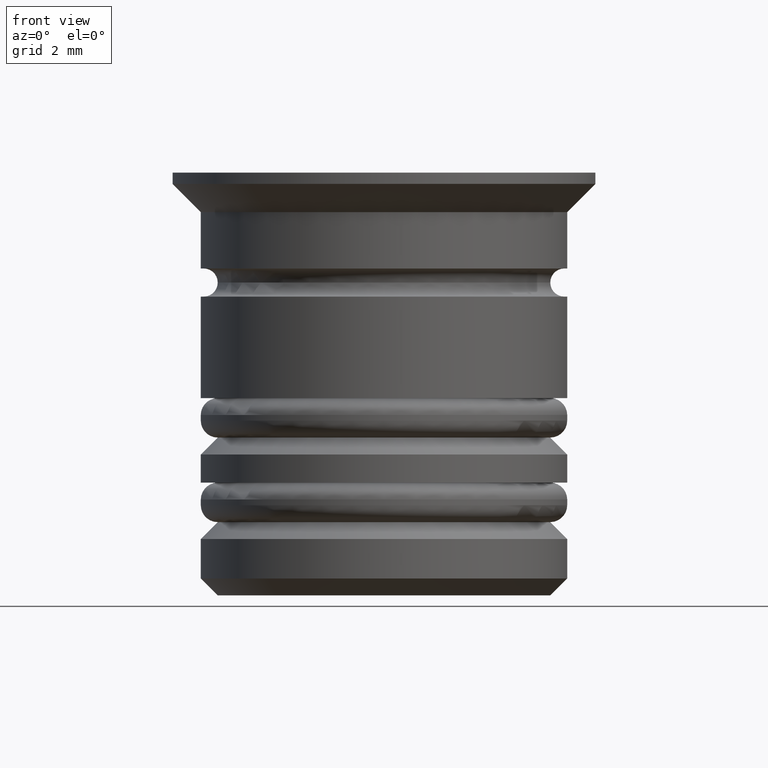
[diagram: clean part render]
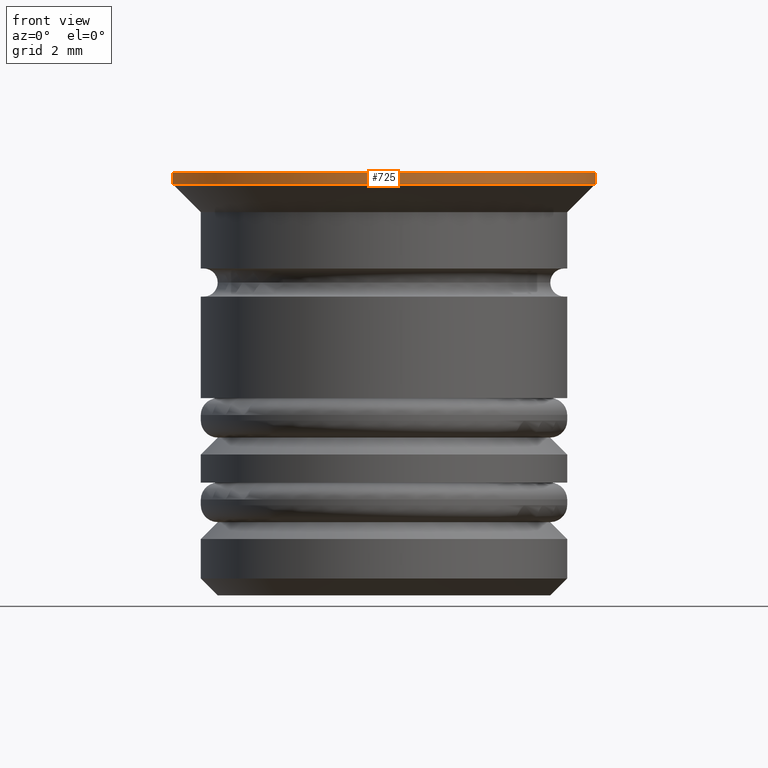
[diagram: same view with one face highlighted and labeled with its STEP entity id]
A machine part, front view. The second image highlights one B-rep face of the part: STEP entity #725.
In plain terms, the highlighted cylindrical surface (partial cylindrical patch) has radius 3.75 mm, axis along (-0, -0, 1).
Its self-contained STEP definition (entity closure, byte-faithful):
#9 = CARTESIAN_POINT ( 'NONE',  ( -3.750000000000000000, 4.592425496802573972E-16, 0.000000000000000000 ) ) ;
#60 = FACE_OUTER_BOUND ( 'NONE', #635, .T. ) ;
#170 = CARTESIAN_POINT ( 'NONE',  ( 0.000000000000000000, 0.000000000000000000, -0.1999999999999964029 ) ) ;
#180 = ORIENTED_EDGE ( 'NONE', *, *, #1560, .T. ) ;
#336 = VERTEX_POINT ( 'NONE', #817 ) ;
#383 = VECTOR ( 'NONE', #1230, 1000.000000000000000 ) ;
#408 = DIRECTION ( 'NONE',  ( -0.000000000000000000, -0.000000000000000000, 1.000000000000000000 ) ) ;
#450 = VERTEX_POINT ( 'NONE', #1272 ) ;
#554 = CARTESIAN_POINT ( 'NONE',  ( 0.000000000000000000, 0.000000000000000000, 0.000000000000000000 ) ) ;
#620 = VECTOR ( 'NONE', #843, 1000.000000000000000 ) ;
#635 = EDGE_LOOP ( 'NONE', ( #1005, #180, #1294, #1417 ) ) ;
#651 = VERTEX_POINT ( 'NONE', #1767 ) ;
#652 = CYLINDRICAL_SURFACE ( 'NONE', #1729, 3.750000000000000000 ) ;
#725 = ADVANCED_FACE ( 'NONE', ( #60 ), #652, .T. ) ;
#747 = DIRECTION ( 'NONE',  ( -1.000000000000000000, 0.000000000000000000, 0.000000000000000000 ) ) ;
#766 = CIRCLE ( 'NONE', #1642, 3.750000000000000000 ) ;
#791 = CIRCLE ( 'NONE', #1727, 3.750000000000000000 ) ;
#794 = EDGE_CURVE ( 'NONE', #1531, #450, #833, .T. ) ;
#817 = CARTESIAN_POINT ( 'NONE',  ( 3.750000000000000000, 0.000000000000000000, 0.000000000000000000 ) ) ;
#821 = DIRECTION ( 'NONE',  ( 1.000000000000000000, 0.000000000000000000, 0.000000000000000000 ) ) ;
#833 = LINE ( 'NONE', #9, #383 ) ;
#843 = DIRECTION ( 'NONE',  ( -0.000000000000000000, -0.000000000000000000, 1.000000000000000000 ) ) ;
#975 = CARTESIAN_POINT ( 'NONE',  ( 3.750000000000000000, 0.000000000000000000, 0.000000000000000000 ) ) ;
#982 = DIRECTION ( 'NONE',  ( -0.000000000000000000, -0.000000000000000000, 1.000000000000000000 ) ) ;
#1005 = ORIENTED_EDGE ( 'NONE', *, *, #794, .F. ) ;
#1230 = DIRECTION ( 'NONE',  ( -0.000000000000000000, -0.000000000000000000, 1.000000000000000000 ) ) ;
#1272 = CARTESIAN_POINT ( 'NONE',  ( -3.750000000000000000, 4.592425496802573972E-16, 0.000000000000000000 ) ) ;
#1294 = ORIENTED_EDGE ( 'NONE', *, *, #1712, .T. ) ;
#1346 = CARTESIAN_POINT ( 'NONE',  ( 0.000000000000000000, 0.000000000000000000, 0.000000000000000000 ) ) ;
#1417 = ORIENTED_EDGE ( 'NONE', *, *, #1659, .F. ) ;
#1510 = DIRECTION ( 'NONE',  ( -0.000000000000000000, -0.000000000000000000, 1.000000000000000000 ) ) ;
#1531 = VERTEX_POINT ( 'NONE', #1795 ) ;
#1560 = EDGE_CURVE ( 'NONE', #1531, #651, #766, .T. ) ;
#1642 = AXIS2_PLACEMENT_3D ( 'NONE', #170, #982, #747 ) ;
#1659 = EDGE_CURVE ( 'NONE', #450, #336, #791, .T. ) ;
#1674 = LINE ( 'NONE', #975, #620 ) ;
#1712 = EDGE_CURVE ( 'NONE', #651, #336, #1674, .T. ) ;
#1727 = AXIS2_PLACEMENT_3D ( 'NONE', #554, #408, #821 ) ;
#1729 = AXIS2_PLACEMENT_3D ( 'NONE', #1346, #1510, #1773 ) ;
#1767 = CARTESIAN_POINT ( 'NONE',  ( 3.750000000000000000, 0.000000000000000000, -0.1999999999999964029 ) ) ;
#1773 = DIRECTION ( 'NONE',  ( 1.000000000000000000, 0.000000000000000000, 0.000000000000000000 ) ) ;
#1795 = CARTESIAN_POINT ( 'NONE',  ( -3.750000000000000000, 4.592425496802573972E-16, -0.1999999999999964029 ) ) ;